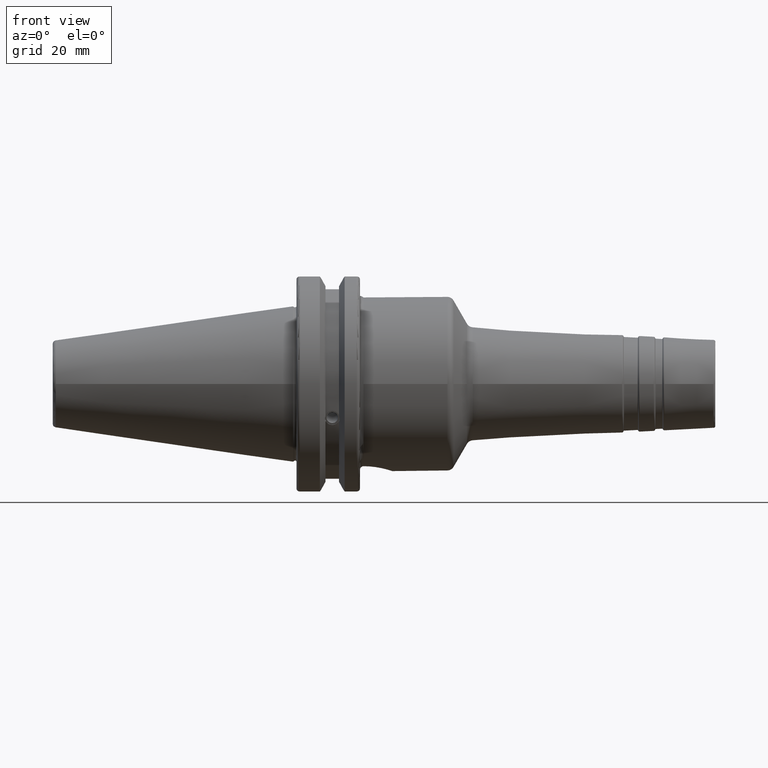
[diagram: clean part render]
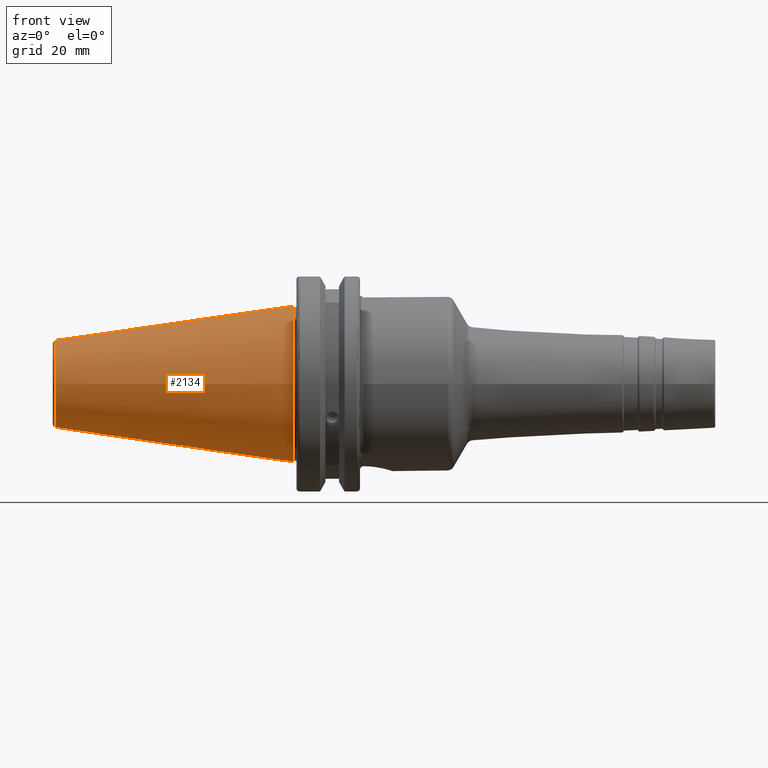
[diagram: same view with one face highlighted and labeled with its STEP entity id]
A machine part, front view. The second image highlights one B-rep face of the part: STEP entity #2134.
In plain terms, the highlighted conical surface has half-angle 8.297 deg.
Its self-contained STEP definition (entity closure, byte-faithful):
#246=LINE('',#4148,#339);
#339=VECTOR('',#3055,17.2484375);
#369=CONICAL_SURFACE('',#2426,17.2484375,0.144812498238939);
#453=FACE_OUTER_BOUND('',#571,.T.);
#571=EDGE_LOOP('',(#1880,#1881,#1882,#1883,#1884,#1885,#1886));
#743=CIRCLE('',#2417,12.3966635780937);
#744=CIRCLE('',#2418,12.3966635780937);
#748=CIRCLE('',#2422,12.3966635780937);
#751=CIRCLE('',#2427,22.225);
#752=CIRCLE('',#2428,22.225);
#989=VERTEX_POINT('',#4127);
#990=VERTEX_POINT('',#4128);
#991=VERTEX_POINT('',#4130);
#996=VERTEX_POINT('',#4144);
#997=VERTEX_POINT('',#4145);
#1305=EDGE_CURVE('',#989,#990,#743,.T.);
#1306=EDGE_CURVE('',#990,#991,#744,.T.);
#1310=EDGE_CURVE('',#991,#989,#748,.T.);
#1313=EDGE_CURVE('',#996,#997,#751,.T.);
#1314=EDGE_CURVE('',#997,#996,#752,.T.);
#1315=EDGE_CURVE('',#997,#990,#246,.T.);
#1880=ORIENTED_EDGE('',*,*,#1313,.F.);
#1881=ORIENTED_EDGE('',*,*,#1314,.F.);
#1882=ORIENTED_EDGE('',*,*,#1315,.T.);
#1883=ORIENTED_EDGE('',*,*,#1305,.F.);
#1884=ORIENTED_EDGE('',*,*,#1310,.F.);
#1885=ORIENTED_EDGE('',*,*,#1306,.F.);
#1886=ORIENTED_EDGE('',*,*,#1315,.F.);
#2134=ADVANCED_FACE('',(#453),#369,.T.);
#2417=AXIS2_PLACEMENT_3D('',#4129,#3031,#3032);
#2418=AXIS2_PLACEMENT_3D('',#4131,#3033,#3034);
#2422=AXIS2_PLACEMENT_3D('',#4137,#3041,#3042);
#2426=AXIS2_PLACEMENT_3D('',#4143,#3049,#3050);
#2427=AXIS2_PLACEMENT_3D('',#4146,#3051,#3052);
#2428=AXIS2_PLACEMENT_3D('',#4147,#3053,#3054);
#3031=DIRECTION('center_axis',(-1.,0.,0.));
#3032=DIRECTION('ref_axis',(0.,-1.,3.06161699786838E-17));
#3033=DIRECTION('center_axis',(-1.,0.,0.));
#3034=DIRECTION('ref_axis',(0.,-1.,3.06161699786838E-17));
#3041=DIRECTION('center_axis',(-1.,0.,0.));
#3042=DIRECTION('ref_axis',(0.,-1.,3.06161699786838E-17));
#3049=DIRECTION('center_axis',(1.,0.,0.));
#3050=DIRECTION('ref_axis',(0.,1.,0.));
#3051=DIRECTION('center_axis',(1.,0.,0.));
#3052=DIRECTION('ref_axis',(0.,0.,-1.));
#3053=DIRECTION('center_axis',(1.,0.,0.));
#3054=DIRECTION('ref_axis',(0.,0.,-1.));
#3055=DIRECTION('',(-0.989532981063282,0.144306893071729,1.76724974695192E-17));
#4127=CARTESIAN_POINT('',(-67.3943068930717,12.3966635780937,-3.79538359275475E-15));
#4128=CARTESIAN_POINT('',(-67.3943068930718,-12.3966635780937,-1.5181534371019E-15));
#4129=CARTESIAN_POINT('Origin',(-67.3943068930717,0.,-1.89769179637738E-15));
#4130=CARTESIAN_POINT('',(-67.3943068930717,-1.5181534371019E-15,12.3966635780937));
#4131=CARTESIAN_POINT('Origin',(-67.3943068930717,0.,-1.89769179637738E-15));
#4137=CARTESIAN_POINT('Origin',(-67.3943068930717,0.,-1.89769179637738E-15));
#4143=CARTESIAN_POINT('Origin',(-34.125,0.,0.));
#4144=CARTESIAN_POINT('',(0.,22.225,0.));
#4145=CARTESIAN_POINT('',(0.,-22.225,-2.72177751110499E-15));
#4146=CARTESIAN_POINT('Origin',(0.,0.,0.));
#4147=CARTESIAN_POINT('Origin',(0.,0.,0.));
#4148=CARTESIAN_POINT('',(-34.125,-17.2484375,-2.11232437746682E-15));